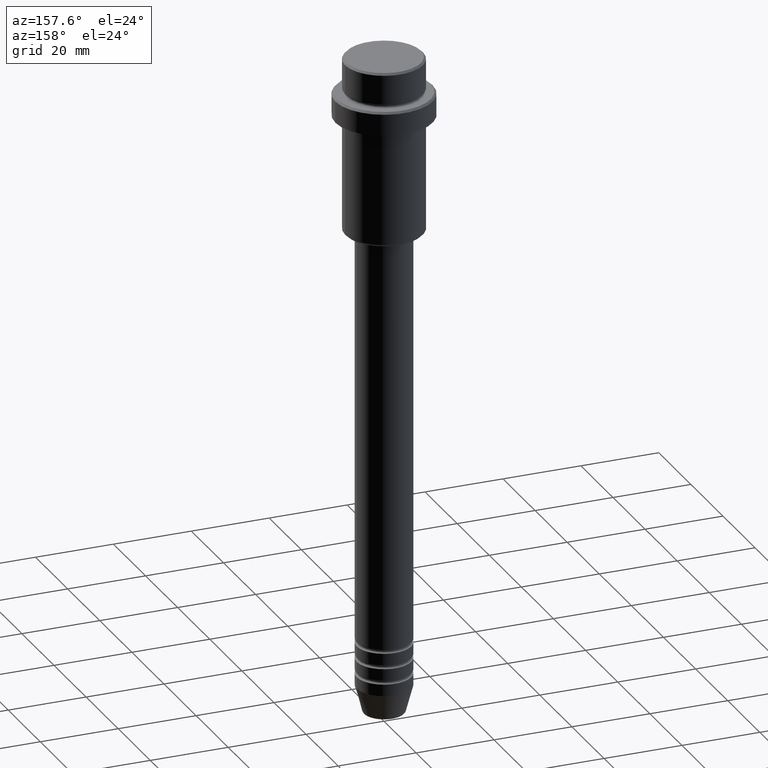
[diagram: clean part render]
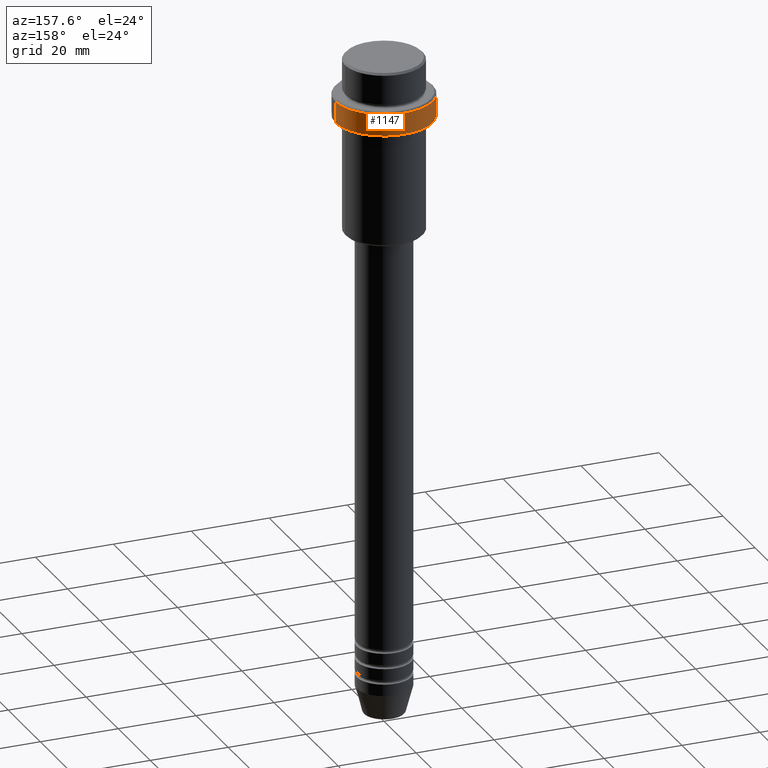
[diagram: same view with one face highlighted and labeled with its STEP entity id]
A machine part, auxiliary view. The second image highlights one B-rep face of the part: STEP entity #1147.
In plain terms, the highlighted cylindrical surface (partial cylindrical patch) has radius 12.5 mm, axis along (-0, -0, 1).
Its self-contained STEP definition (entity closure, byte-faithful):
#52 = EDGE_LOOP ( 'NONE', ( #593, #817, #598, #440 ) ) ;
#82 = AXIS2_PLACEMENT_3D ( 'NONE', #522, #959, #404 ) ;
#85 = CYLINDRICAL_SURFACE ( 'NONE', #82, 12.50000000000000000 ) ;
#93 = CARTESIAN_POINT ( 'NONE',  ( -12.50000000000000000, 1.530808498934191521E-15, -15.00000000000000000 ) ) ;
#96 = CARTESIAN_POINT ( 'NONE',  ( 12.50000000000000000, 0.000000000000000000, -9.499999999999976907 ) ) ;
#106 = VECTOR ( 'NONE', #1099, 1000.000000000000000 ) ;
#112 = AXIS2_PLACEMENT_3D ( 'NONE', #485, #925, #599 ) ;
#165 = LINE ( 'NONE', #595, #588 ) ;
#189 = CARTESIAN_POINT ( 'NONE',  ( 12.50000000000000000, 0.000000000000000000, -15.00000000000000000 ) ) ;
#404 = DIRECTION ( 'NONE',  ( 1.000000000000000000, 0.000000000000000000, 0.000000000000000000 ) ) ;
#413 = VERTEX_POINT ( 'NONE', #96 ) ;
#429 = DIRECTION ( 'NONE',  ( 0.000000000000000000, 0.000000000000000000, -1.000000000000000000 ) ) ;
#440 = ORIENTED_EDGE ( 'NONE', *, *, #785, .F. ) ;
#485 = CARTESIAN_POINT ( 'NONE',  ( 0.000000000000000000, 0.000000000000000000, -15.00000000000000000 ) ) ;
#490 = DIRECTION ( 'NONE',  ( -0.000000000000000000, -0.000000000000000000, 1.000000000000000000 ) ) ;
#522 = CARTESIAN_POINT ( 'NONE',  ( 0.000000000000000000, 0.000000000000000000, 0.000000000000000000 ) ) ;
#566 = EDGE_CURVE ( 'NONE', #1021, #973, #165, .T. ) ;
#572 = EDGE_CURVE ( 'NONE', #633, #1021, #1133, .T. ) ;
#588 = VECTOR ( 'NONE', #490, 1000.000000000000000 ) ;
#593 = ORIENTED_EDGE ( 'NONE', *, *, #572, .T. ) ;
#595 = CARTESIAN_POINT ( 'NONE',  ( -12.50000000000000000, 1.530808498934191521E-15, 0.000000000000000000 ) ) ;
#598 = ORIENTED_EDGE ( 'NONE', *, *, #1183, .T. ) ;
#599 = DIRECTION ( 'NONE',  ( 1.000000000000000000, 0.000000000000000000, 0.000000000000000000 ) ) ;
#633 = VERTEX_POINT ( 'NONE', #189 ) ;
#661 = LINE ( 'NONE', #983, #106 ) ;
#737 = FACE_OUTER_BOUND ( 'NONE', #52, .T. ) ;
#744 = AXIS2_PLACEMENT_3D ( 'NONE', #1112, #429, #1092 ) ;
#785 = EDGE_CURVE ( 'NONE', #633, #413, #661, .T. ) ;
#817 = ORIENTED_EDGE ( 'NONE', *, *, #566, .T. ) ;
#925 = DIRECTION ( 'NONE',  ( -0.000000000000000000, -0.000000000000000000, 1.000000000000000000 ) ) ;
#959 = DIRECTION ( 'NONE',  ( -0.000000000000000000, -0.000000000000000000, 1.000000000000000000 ) ) ;
#973 = VERTEX_POINT ( 'NONE', #1247 ) ;
#983 = CARTESIAN_POINT ( 'NONE',  ( 12.50000000000000000, 0.000000000000000000, 0.000000000000000000 ) ) ;
#1021 = VERTEX_POINT ( 'NONE', #93 ) ;
#1092 = DIRECTION ( 'NONE',  ( 1.000000000000000000, 0.000000000000000000, 0.000000000000000000 ) ) ;
#1099 = DIRECTION ( 'NONE',  ( -0.000000000000000000, -0.000000000000000000, 1.000000000000000000 ) ) ;
#1112 = CARTESIAN_POINT ( 'NONE',  ( 0.000000000000000000, 0.000000000000000000, -9.499999999999976907 ) ) ;
#1133 = CIRCLE ( 'NONE', #112, 12.50000000000000000 ) ;
#1147 = ADVANCED_FACE ( 'NONE', ( #737 ), #85, .T. ) ;
#1183 = EDGE_CURVE ( 'NONE', #973, #413, #1238, .T. ) ;
#1238 = CIRCLE ( 'NONE', #744, 12.50000000000000000 ) ;
#1247 = CARTESIAN_POINT ( 'NONE',  ( -12.50000000000000000, 1.530808498934191521E-15, -9.499999999999976907 ) ) ;